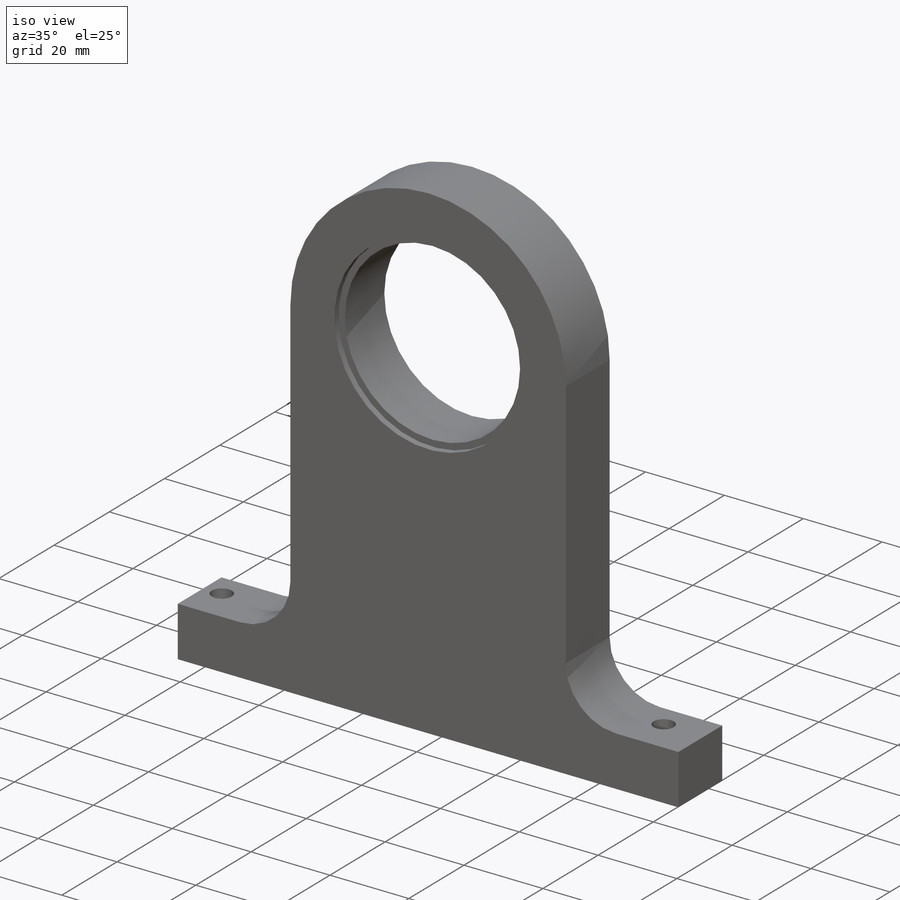
[diagram: iso view]
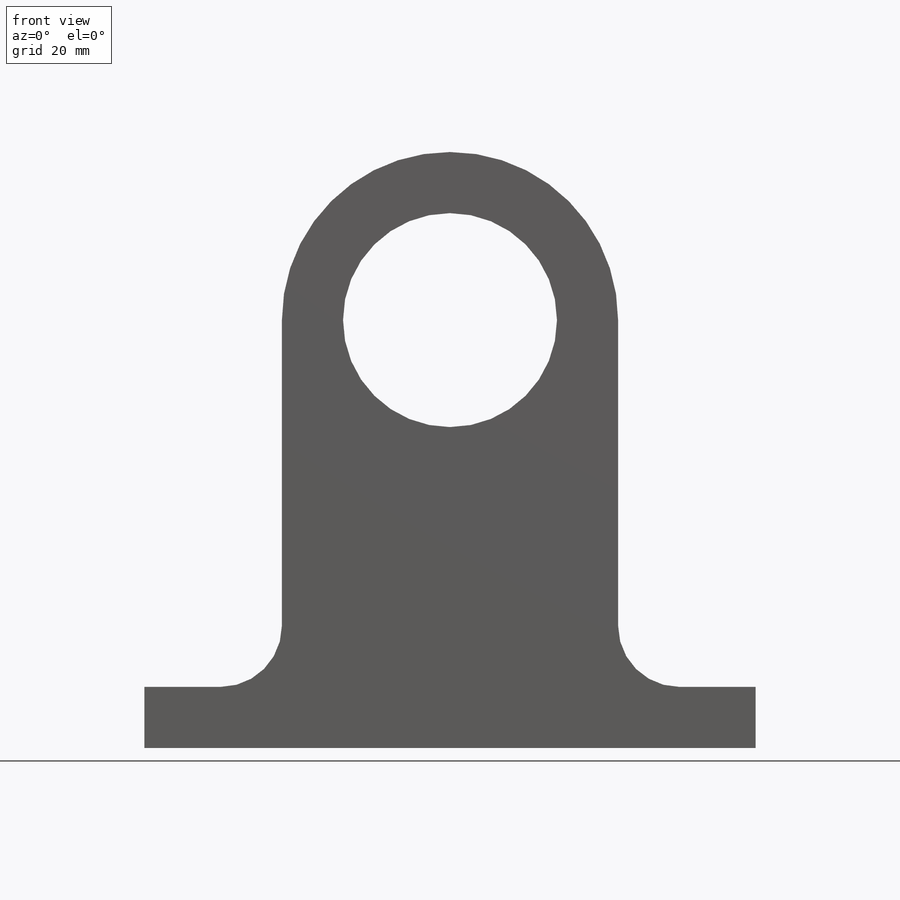
[diagram: front view]
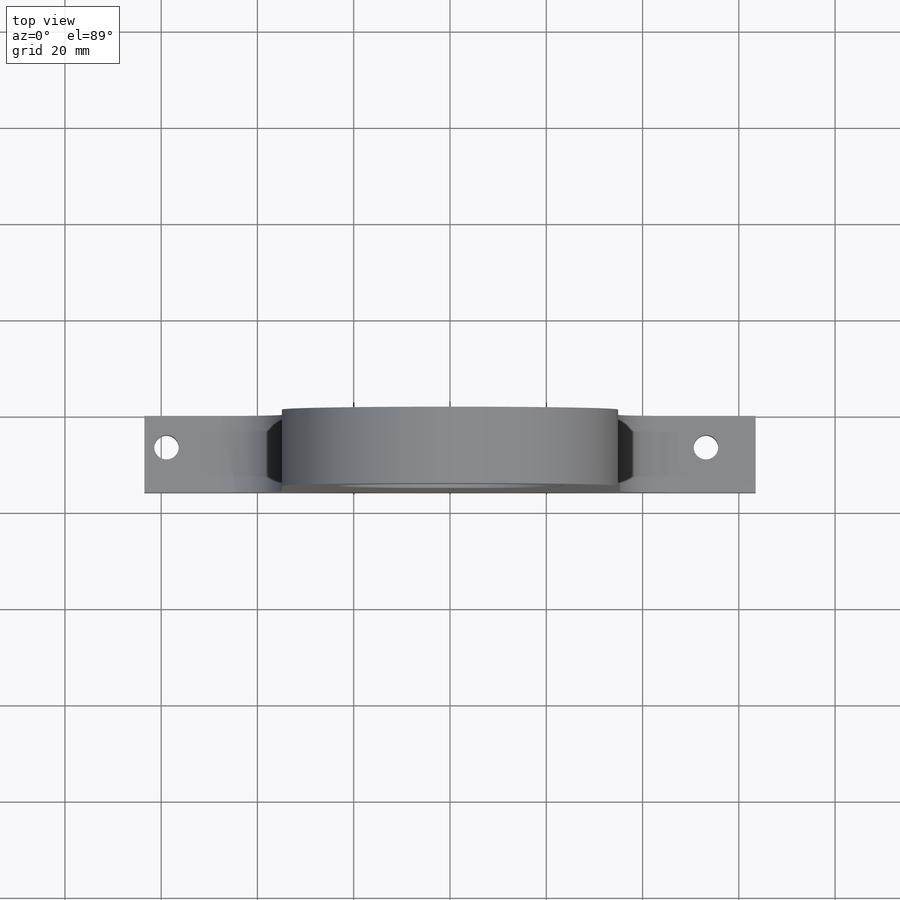
[diagram: top view]
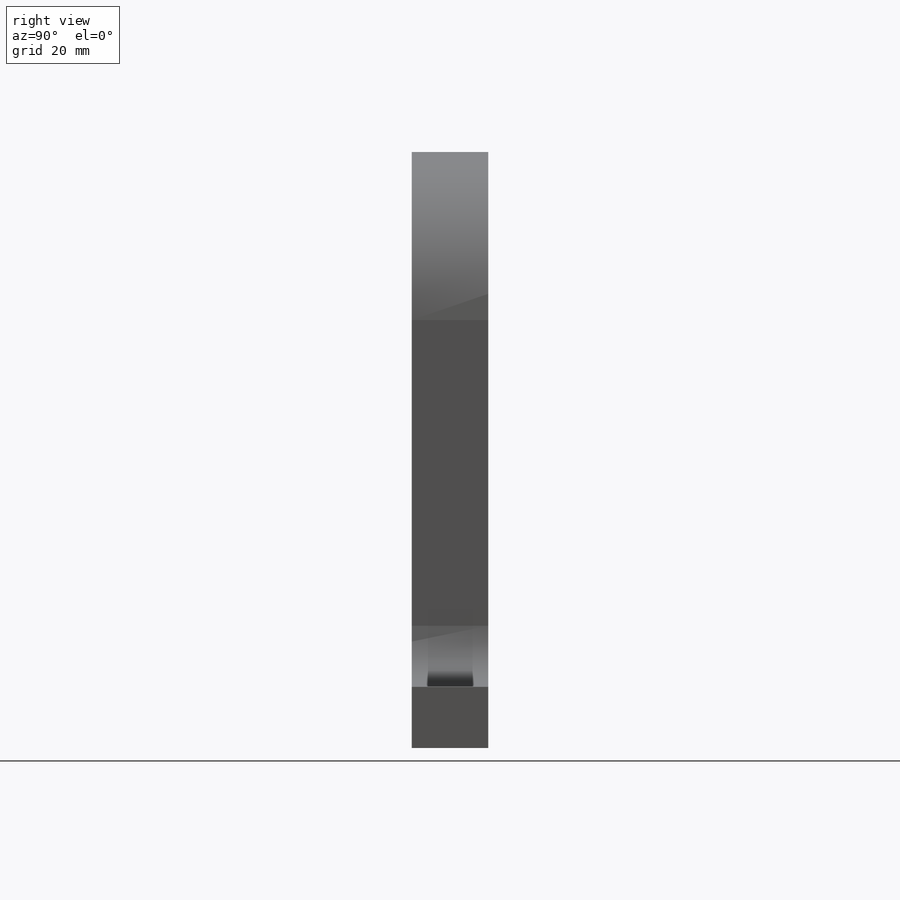
[diagram: right view]
SOLIDWORKS PART (.sldprt)
format: sldprt  version: not decoded by parser v0  size: 233,472 bytes
history: native  units: mm
features: sketch x6, hole x2, thread x2, material x1, extrude x1, fillet x1, cut_extrude x1 (+16 scaffold rows collapsed)
feature tree (30):
  scaffold x16  (default folders/planes/origin — collapsed)
  material  "Material <not specified>"
  sketch  "Sketch1"  dims[D1=44.45mm D2=12.7mm D3=88.9mm D4=12.7mm D5=127.0mm D6=63.5mm]
  extrude  "Boss-Extrude1"  Depth=15.875mm
  fillet  "Fillet1"  Radius=12.7mm
  sketch  "Sketch2"  dims[D1=47.625mm]
  cut_extrude  "Cut-Extrude1"  Depth=1.5875mm
  hole  "CBORE for 1/4 Socket Head Cap Screw1"  Diameter=6.7564mm Depth=12.7mm
  sketch  "Sketch4"  dims[D1=7.9375mm D2=7.9375mm D3=7.9375mm D4=7.9375mm D5=6.35mm]
  sketch  "Sketch3"  dims[hole-wizard template sketch: 43 standard entries collapsed; hole parameters kept: c12.C'Bore Dia.=11.1125mm c12.C'Bore Depth=6.35mm]
  hole  "1/4-20 Tapped Hole1"  Diameter=5.1054mm Depth=123.825mm
  sketch  "Sketch6"
  sketch  "Sketch5"  dims[hole-wizard template sketch: 60 standard entries collapsed; hole parameters kept: c18.Thru Tap Drill Depth=123.825mm]
  thread  "Hole Thread1"  Diameter=6.35mm  [1 undecoded]
  thread  "Hole Thread2"  Diameter=6.35mm  [1 undecoded]
decode coverage: 12 of 13 modeling features carry decoded parameters
note: ~ marks probable driven/reference dimensions
note: 2 parameter values undecoded
note: suppression state not decoded; provenance and decode notes live in map.json
